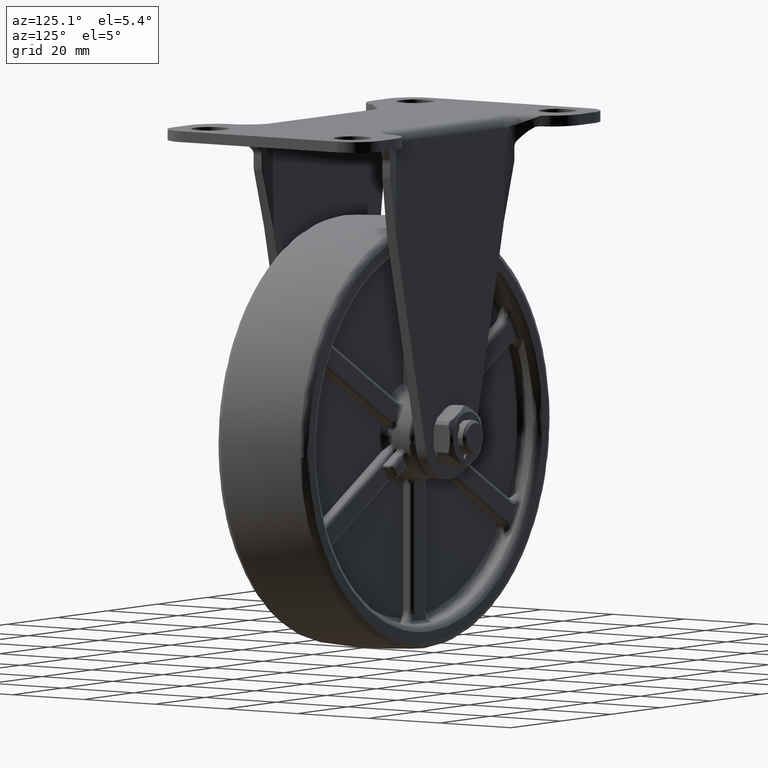
[diagram: clean part render]
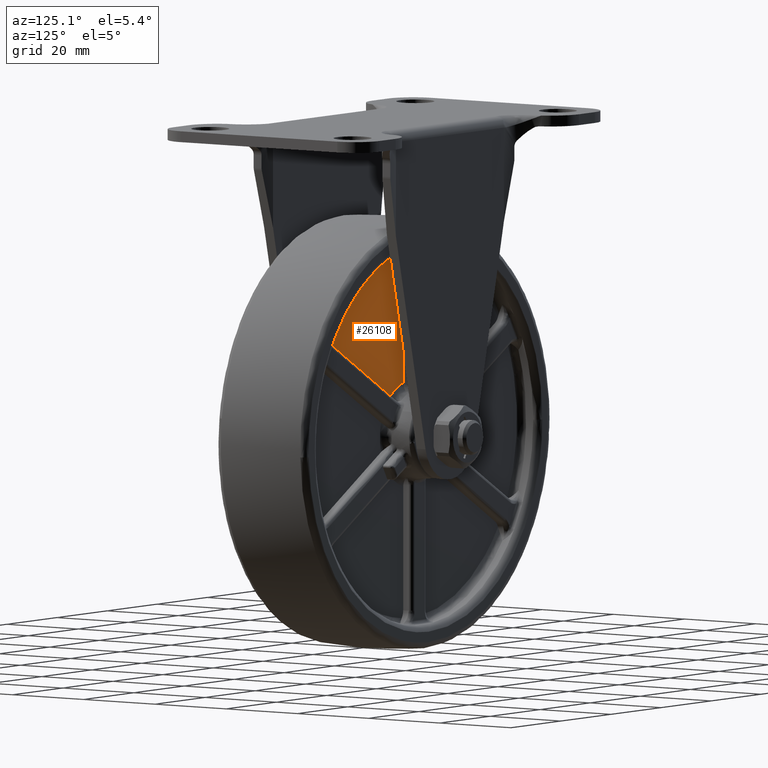
[diagram: same view with one face highlighted and labeled with its STEP entity id]
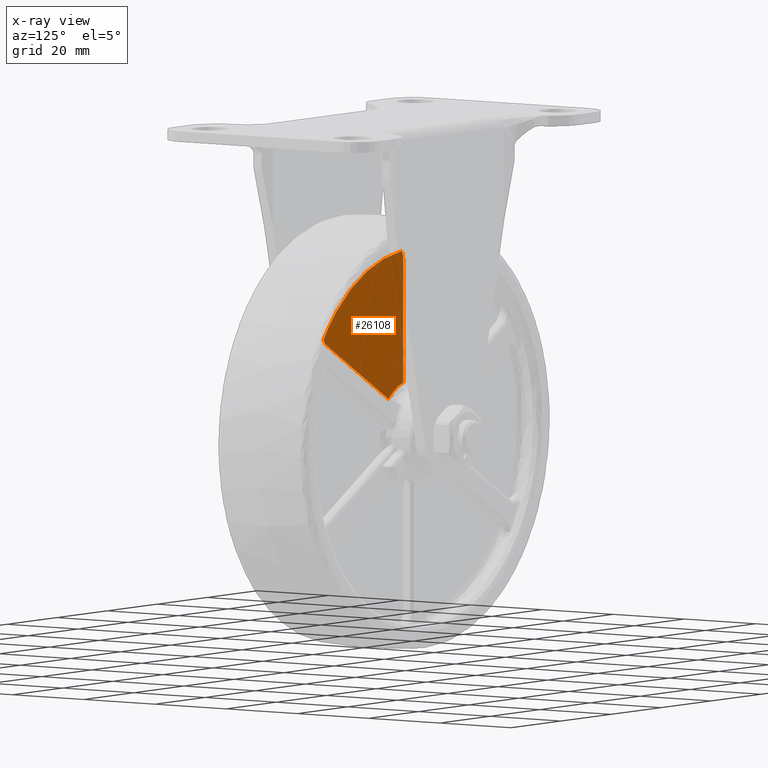
[diagram: x-ray of the same camera — body ghosted, the highlighted face saturated]
A machine part, auxiliary view. The second image highlights one B-rep face of the part: STEP entity #26108.
The next image is the same camera in x-ray: the body ghosted, the highlighted face saturated — about 2% of this face is hidden behind the body in this view.
In plain terms, the highlighted face is a freeform B-spline surface patch.
Its self-contained STEP definition (entity closure, byte-faithful):
#24137=CARTESIAN_POINT('',(2.878366200466435,7.500000000000000,-45.715239939703700));
#24138=VERTEX_POINT('',#24137);
#24173=CARTESIAN_POINT('',(1.624777561705115,7.500000000000000,-47.122623397351198));
#24174=VERTEX_POINT('',#24173);
#24180=CARTESIAN_POINT('',(2.878366200466459,7.500000000000000,-45.715239939703707));
#24181=CARTESIAN_POINT('',(2.484402119340223,7.500000000000000,-46.626318887589804));
#24182=CARTESIAN_POINT('',(1.624777561705123,7.500000000000000,-47.122623397351212));
#24190=(BOUNDED_CURVE()B_SPLINE_CURVE(2,(#24180,#24181,#24182),.UNSPECIFIED.,.F.,.U.)CURVE()GEOMETRIC_REPRESENTATION_ITEM()QUASI_UNIFORM_CURVE()RATIONAL_B_SPLINE_CURVE((1.0,0.949382655084472,1.0))REPRESENTATION_ITEM(''));
#24191=EDGE_CURVE('',#24138,#24174,#24190,.T.);
#24243=CARTESIAN_POINT('',(-23.131218968460900,7.500000000000000,-61.415504499341601));
#24244=VERTEX_POINT('',#24243);
#24252=CARTESIAN_POINT('',(-23.131218968460900,7.500000000000000,-61.415504499341601));
#24253=CARTESIAN_POINT('',(1.624777561705115,7.500000000000000,-47.122623397351198));
#24254=QUASI_UNIFORM_CURVE('',1,(#24252,#24253),.UNSPECIFIED.,.F.,.U.);
#24255=EDGE_CURVE('',#24244,#24174,#24254,.T.);
#24368=CARTESIAN_POINT('',(-28.999999471015052,7.500000000000000,-29.441400252786849));
#24369=VERTEX_POINT('',#24368);
#24376=CARTESIAN_POINT('',(-28.407963963206949,7.500000000000000,-27.652068797751301));
#24377=VERTEX_POINT('',#24376);
#24411=CARTESIAN_POINT('',(-28.999999471015052,7.500000000000000,-29.441400252786849));
#24412=CARTESIAN_POINT('',(-28.999999475789181,7.500000000000001,-28.448791227180806));
#24413=CARTESIAN_POINT('',(-28.407963963206960,7.500000000000000,-27.652068797751291));
#24421=(BOUNDED_CURVE()B_SPLINE_CURVE(2,(#24411,#24412,#24413),.UNSPECIFIED.,.F.,.U.)CURVE()GEOMETRIC_REPRESENTATION_ITEM()QUASI_UNIFORM_CURVE()RATIONAL_B_SPLINE_CURVE((1.0,0.949382648846589,1.0))REPRESENTATION_ITEM(''));
#24422=EDGE_CURVE('',#24369,#24377,#24421,.T.);
#24514=CARTESIAN_POINT('',(-28.999999333526251,7.500000000000000,-58.027162575756300));
#24515=VERTEX_POINT('',#24514);
#24516=CARTESIAN_POINT('',(-28.999999471015052,7.500000000000000,-29.441400252786849));
#24517=CARTESIAN_POINT('',(-28.999999333526251,7.500000000000000,-58.027162575756300));
#24518=QUASI_UNIFORM_CURVE('',1,(#24516,#24517),.UNSPECIFIED.,.F.,.U.);
#24519=EDGE_CURVE('',#24369,#24515,#24518,.T.);
#25920=CARTESIAN_POINT('',(-28.999999333526279,7.500000000000000,-58.027162575756421));
#25921=CARTESIAN_POINT('',(-25.581951211904236,7.500000000000000,-58.883613413562166));
#25922=CARTESIAN_POINT('',(-23.131218968460949,7.500000000000000,-61.415504499341637));
#25930=(BOUNDED_CURVE()B_SPLINE_CURVE(2,(#25920,#25921,#25922),.UNSPECIFIED.,.F.,.U.)CURVE()GEOMETRIC_REPRESENTATION_ITEM()QUASI_UNIFORM_CURVE()RATIONAL_B_SPLINE_CURVE((1.0,0.961582533517053,1.0))REPRESENTATION_ITEM(''));
#25931=EDGE_CURVE('',#24515,#24244,#25930,.T.);
#26083=CARTESIAN_POINT('',(-30.592324373021668,7.500000000000000,-25.965585566843931));
#26084=CARTESIAN_POINT('',(-30.592324373021668,7.500000000000000,-63.101988937723519));
#26085=CARTESIAN_POINT('',(4.470691387487849,7.500000000000000,-25.965585566843931));
#26086=CARTESIAN_POINT('',(4.470691387487849,7.500000000000000,-63.101988937723519));
#26087=B_SPLINE_SURFACE_WITH_KNOTS('',1,1,((#26083,#26085),(#26084,#26086)),.UNSPECIFIED.,.F.,.F.,.U.,(2,2),(2,2),(0.0,37.136403370879577),(0.0,35.063015760509522),.UNSPECIFIED.);
#26088=CARTESIAN_POINT('',(-28.407963963206960,7.500000000000000,-27.652068797751411));
#26089=CARTESIAN_POINT('',(-8.524160199050355,7.500000000000000,-29.338652714407512));
#26090=CARTESIAN_POINT('',(2.878366200466415,7.500000000000000,-45.715239939703707));
#26098=(BOUNDED_CURVE()B_SPLINE_CURVE(2,(#26088,#26089,#26090),.UNSPECIFIED.,.F.,.U.)CURVE()GEOMETRIC_REPRESENTATION_ITEM()QUASI_UNIFORM_CURVE()RATIONAL_B_SPLINE_CURVE((1.0,0.905185934994341,1.0))REPRESENTATION_ITEM(''));
#26099=EDGE_CURVE('',#24377,#24138,#26098,.T.);
#26100=ORIENTED_EDGE('',*,*,#26099,.T.);
#26101=ORIENTED_EDGE('',*,*,#24191,.T.);
#26102=ORIENTED_EDGE('',*,*,#24255,.F.);
#26103=ORIENTED_EDGE('',*,*,#25931,.F.);
#26104=ORIENTED_EDGE('',*,*,#24519,.F.);
#26105=ORIENTED_EDGE('',*,*,#24422,.T.);
#26106=EDGE_LOOP('',(#26100,#26101,#26102,#26103,#26104,#26105));
#26107=FACE_OUTER_BOUND('',#26106,.T.);
#26108=ADVANCED_FACE('',(#26107),#26087,.F.);